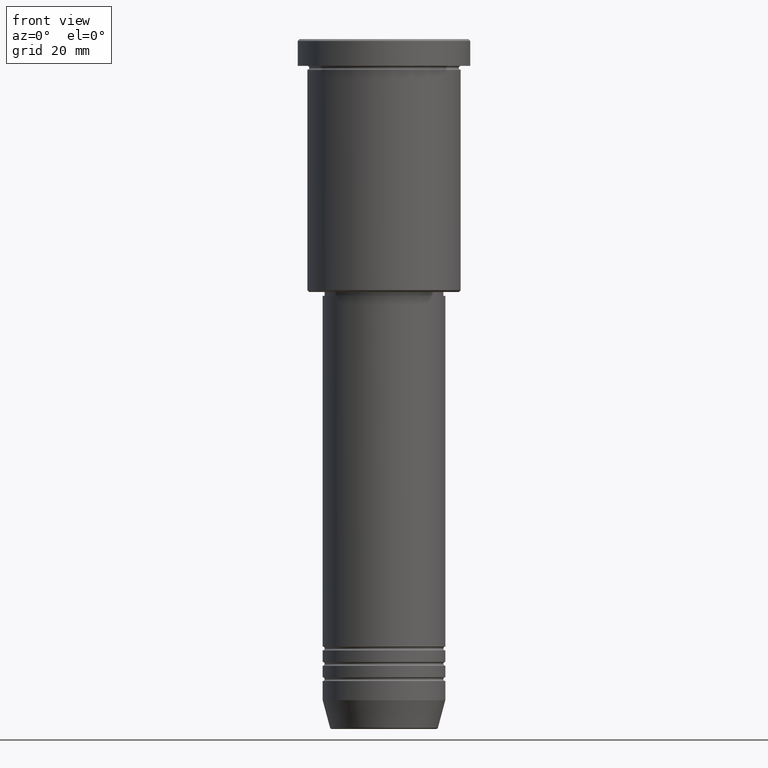
[diagram: clean part render]
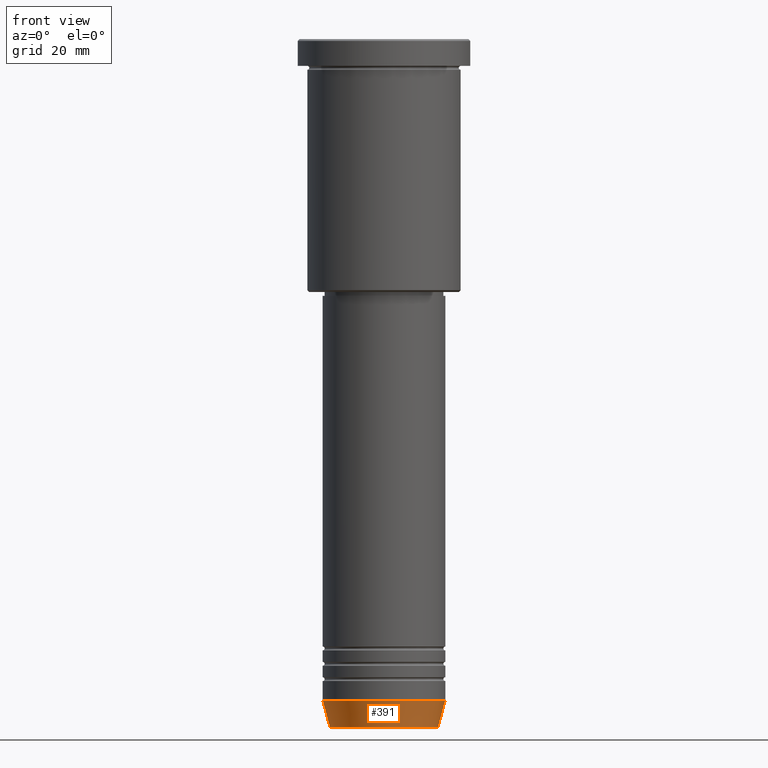
[diagram: same view with one face highlighted and labeled with its STEP entity id]
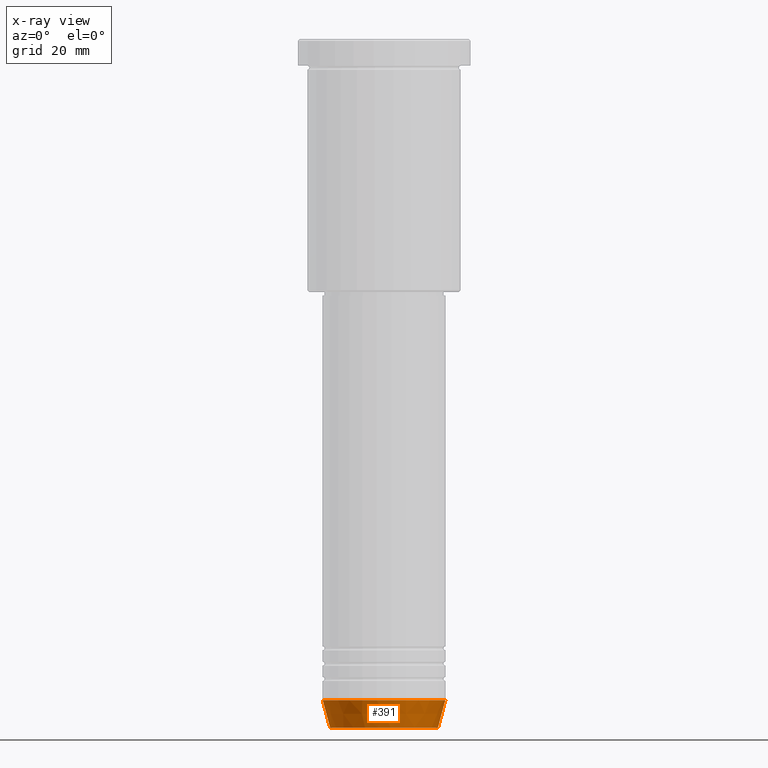
[diagram: x-ray of the same camera — body ghosted, the highlighted face saturated]
A machine part, front view. The second image highlights one B-rep face of the part: STEP entity #391.
The next image is the same camera in x-ray: the body ghosted, the highlighted face saturated — about 0% of this face is hidden behind the body in this view.
In plain terms, the highlighted conical surface has half-angle 15 deg.
Its self-contained STEP definition (entity closure, byte-faithful):
#90 = CARTESIAN_POINT ( 'NONE',  ( 0.000000000000000000, 0.000000000000000000, -172.5000000000000284 ) ) ;
#105 = VERTEX_POINT ( 'NONE', #856 ) ;
#116 = LINE ( 'NONE', #579, #720 ) ;
#189 = EDGE_CURVE ( 'NONE', #891, #875, #116, .T. ) ;
#251 = DIRECTION ( 'NONE',  ( 1.000000000000000000, 0.000000000000000000, 0.000000000000000000 ) ) ;
#269 = VERTEX_POINT ( 'NONE', #585 ) ;
#298 = DIRECTION ( 'NONE',  ( 1.000000000000000000, 0.000000000000000000, 0.000000000000000000 ) ) ;
#301 = ORIENTED_EDGE ( 'NONE', *, *, #929, .T. ) ;
#329 = CARTESIAN_POINT ( 'NONE',  ( 0.000000000000000000, 0.000000000000000000, -179.6294095225512422 ) ) ;
#335 = ORIENTED_EDGE ( 'NONE', *, *, #189, .T. ) ;
#341 = VECTOR ( 'NONE', #572, 1000.000000000000000 ) ;
#347 = CARTESIAN_POINT ( 'NONE',  ( 16.00000000000000000, 0.000000000000000000, -172.5000000000000284 ) ) ;
#391 = ADVANCED_FACE ( 'NONE', ( #451 ), #844, .T. ) ;
#429 = CARTESIAN_POINT ( 'NONE',  ( 14.08968047592163941, 0.000000000000000000, -179.6294095225512422 ) ) ;
#444 = DIRECTION ( 'NONE',  ( -0.000000000000000000, -0.000000000000000000, 1.000000000000000000 ) ) ;
#451 = FACE_OUTER_BOUND ( 'NONE', #683, .T. ) ;
#455 = CIRCLE ( 'NONE', #848, 16.00000000000000000 ) ;
#489 = ORIENTED_EDGE ( 'NONE', *, *, #1007, .F. ) ;
#528 = CARTESIAN_POINT ( 'NONE',  ( 0.000000000000000000, 0.000000000000000000, -172.5000000000000284 ) ) ;
#538 = DIRECTION ( 'NONE',  ( -0.000000000000000000, -0.000000000000000000, 1.000000000000000000 ) ) ;
#572 = DIRECTION ( 'NONE',  ( -0.2588190451025213501, 3.169619151431772337E-17, 0.9659258262890680902 ) ) ;
#579 = CARTESIAN_POINT ( 'NONE',  ( 16.00000000000000000, 0.000000000000000000, -172.5000000000000284 ) ) ;
#585 = CARTESIAN_POINT ( 'NONE',  ( -16.00000000000000000, 1.959434878635765131E-15, -172.5000000000000284 ) ) ;
#641 = AXIS2_PLACEMENT_3D ( 'NONE', #528, #444, #1175 ) ;
#683 = EDGE_LOOP ( 'NONE', ( #489, #301, #335, #1039 ) ) ;
#692 = DIRECTION ( 'NONE',  ( -0.000000000000000000, -0.000000000000000000, 1.000000000000000000 ) ) ;
#720 = VECTOR ( 'NONE', #836, 1000.000000000000000 ) ;
#725 = CARTESIAN_POINT ( 'NONE',  ( -16.00000000000000000, 1.959434878635765131E-15, -172.5000000000000284 ) ) ;
#836 = DIRECTION ( 'NONE',  ( 0.2588190451025213501, 0.000000000000000000, 0.9659258262890680902 ) ) ;
#844 = CONICAL_SURFACE ( 'NONE', #641, 16.00000000000000000, 0.2617993877991500740 ) ;
#848 = AXIS2_PLACEMENT_3D ( 'NONE', #90, #538, #298 ) ;
#856 = CARTESIAN_POINT ( 'NONE',  ( -14.08968047592163941, 1.842461544110202058E-15, -179.6294095225512422 ) ) ;
#875 = VERTEX_POINT ( 'NONE', #347 ) ;
#891 = VERTEX_POINT ( 'NONE', #429 ) ;
#929 = EDGE_CURVE ( 'NONE', #105, #891, #996, .T. ) ;
#996 = CIRCLE ( 'NONE', #1012, 14.08968047592163941 ) ;
#1007 = EDGE_CURVE ( 'NONE', #105, #269, #1088, .T. ) ;
#1012 = AXIS2_PLACEMENT_3D ( 'NONE', #329, #692, #251 ) ;
#1039 = ORIENTED_EDGE ( 'NONE', *, *, #1066, .F. ) ;
#1066 = EDGE_CURVE ( 'NONE', #269, #875, #455, .T. ) ;
#1088 = LINE ( 'NONE', #725, #341 ) ;
#1175 = DIRECTION ( 'NONE',  ( 1.000000000000000000, 0.000000000000000000, 0.000000000000000000 ) ) ;